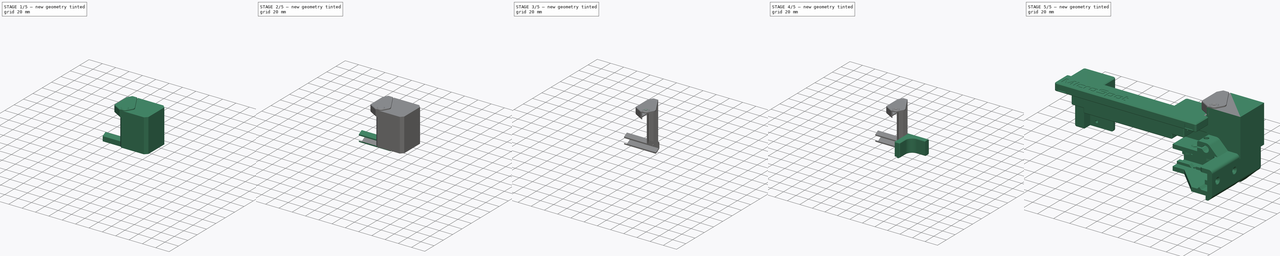
[diagram: build sequence overview — one tinted view per stage of 5, left to right]
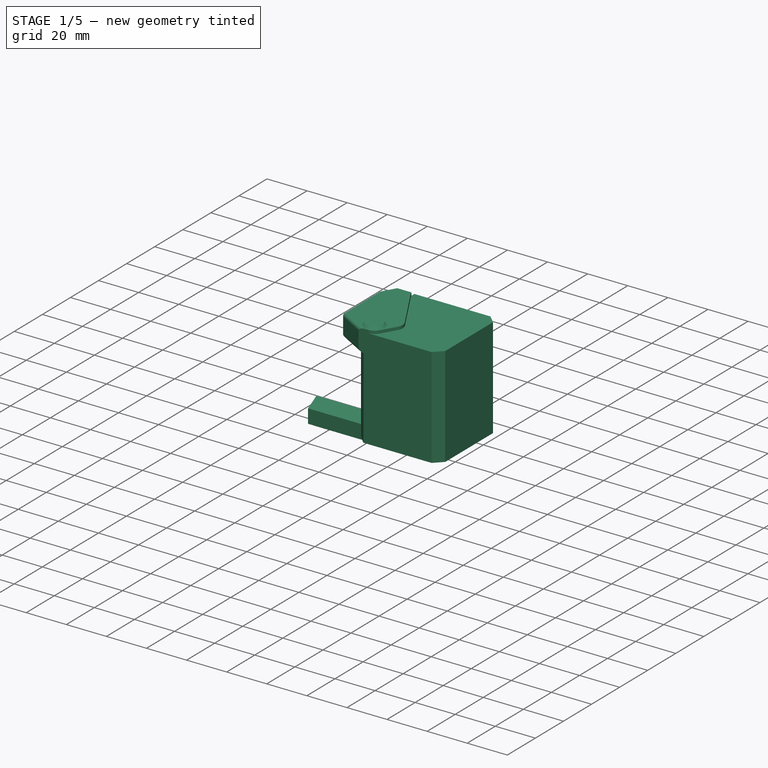
[diagram: stage 1 of 5 — iso view after this stage's code; geometry added in this stage tinted green]
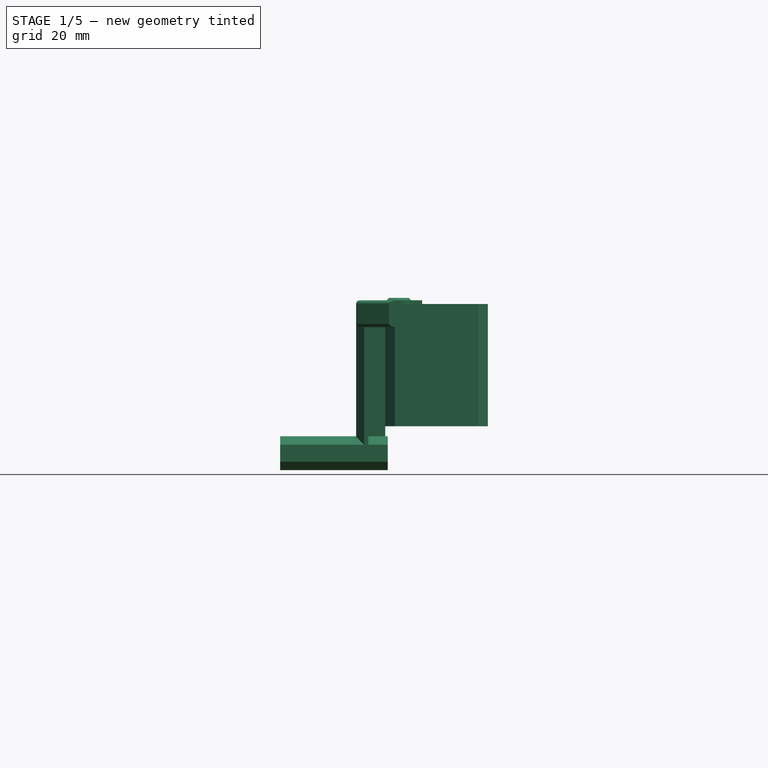
[diagram: stage 1 of 5 — front view after this stage's code; geometry added in this stage tinted green]
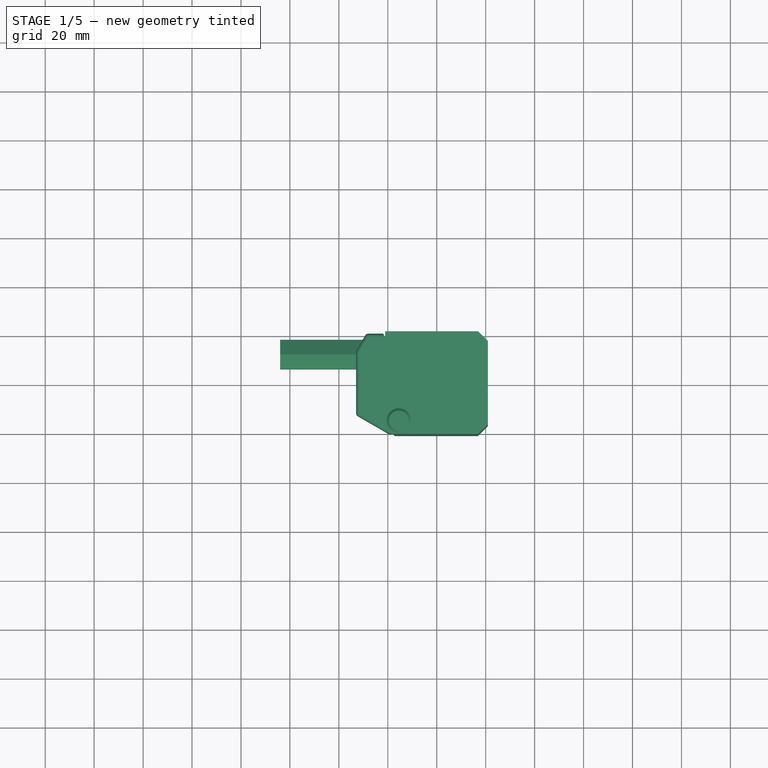
[diagram: stage 1 of 5 — top view after this stage's code; geometry added in this stage tinted green]
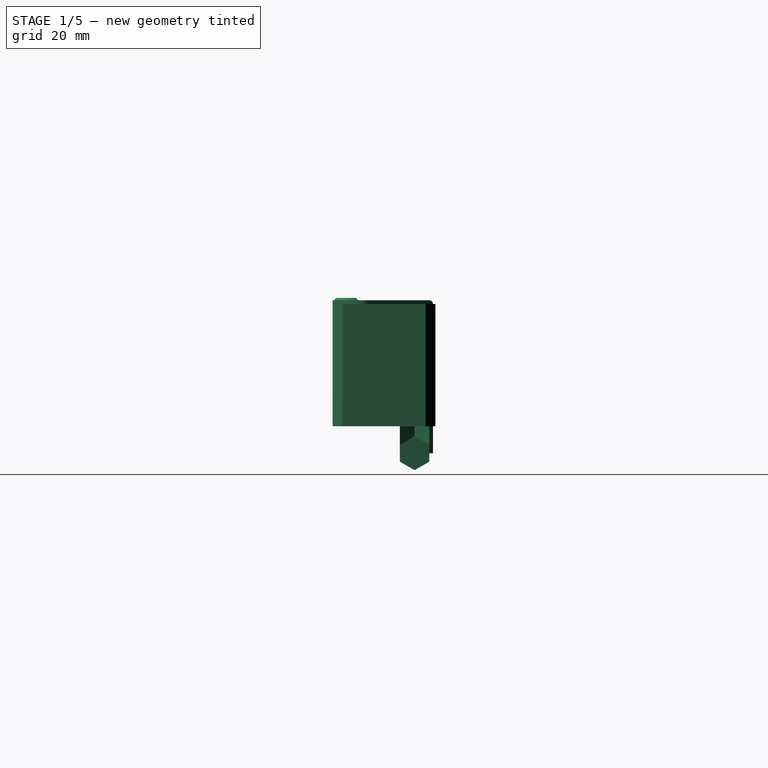
[diagram: stage 1 of 5 — right view after this stage's code; geometry added in this stage tinted green]
FCSTD DOCUMENT  (FreeCAD 0.16RUnknown)
Label: PulleyCover
License: All rights reserved
LicenseURL: http://en.wikipedia.org/wiki/All_rights_reserved
objects: Part::FeaturePython×17, Part::Cut×7, Sketcher::SketchObject×5, Part::MultiFuse×5, PartDesign::Pad×4, App::DocumentObjectGroup×4, Part::Box×3, Part::Thickness×3, Part::Fillet×2, Part::Cylinder×2, Part::Chamfer×2, PartDesign::Revolution×2, Spreadsheet::Sheet×1, Part::Part2DObjectPython×1, PartDesign::Draft×1
note: 60 computed .brp shape members not serialized (recipe doc carries the construction recipe); baked Part::Feature solids carry a one-line shape summary decoded from their .brp

FEATURE [App::DocumentObjectGroup] Group  label="Reference"
  Group = -> [BackCorner_01,NEMAPulley_01,UpperBackCover_01,Box001]
FEATURE [Sketcher::SketchObject] Sketch004  label="HexaChannel"
  Placement = pos=(-20,12.5,-14) rot=(-0.57735,-0.57735,0.57735;2.0944rad)
  expr: Placement.Base.y = 14 - pars.CWWidth
  sketch-geometry (7):
    g0: LineSegment StartX=6 StartY=-3.4641 StartZ=0 EndX=6 EndY=3.4641 EndZ=0
    g1: LineSegment StartX=6 StartY=3.4641 StartZ=0 EndX=0 EndY=6.9282 EndZ=0
    g2: LineSegment StartX=0 StartY=6.9282 StartZ=0 EndX=-6 EndY=3.4641 EndZ=0
    g3: LineSegment StartX=-6 StartY=3.4641 StartZ=0 EndX=-6 EndY=-3.4641 EndZ=0
    g4: LineSegment StartX=-6 StartY=-3.4641 StartZ=0 EndX=0 EndY=-6.9282 EndZ=0
    g5: LineSegment StartX=0 StartY=-6.9282 StartZ=0 EndX=6 EndY=-3.4641 EndZ=0
    g6: Circle [constr] CenterX=0 CenterY=0 CenterZ=0 NormalX=0 NormalY=0 NormalZ=1 Radius=6.9282
  constraints (16):
    c: Coincident(g0,g1)
    c: Coincident(g1,g2)
    c: Coincident(g2,g3)
    c: Coincident(g3,g4)
    c: Coincident(g4,g5)
    c: Coincident(g5,g0)
    c: Equal(g0, g1-g5) x5
    c: PointOnObject(g0,g6)
    c: PointOnObject(g1,g6)
    c: PointOnObject(g2,g6)
    c: PointOnObject(g3,g6)
    c: PointOnObject(g4,g6)
    c: PointOnObject(g5,g6)
    c: Coincident(g6,g-1)
    c: Vertical(g0)
    c: DistanceX(g2,g0) = 12
FEATURE [PartDesign::Pad] Pad004  label="HexaChannel001"
  Length = 44
  Length2 = 100
  Placement = pos=(-20,12.5,-14) rot=(-0.57735,-0.57735,0.57735;2.0944rad)
  Sketch = -> Sketch004
  Type = 0
FEATURE [Part::Part2DObjectPython] Clone2D001  label="HexaChannel002"  # Draft 2D object (typed FeaturePython)
  Objects = -> [Sketch004]
  Placement = pos=(-24.5,12.5,-14) rot=(0,0,1;1.5708rad)
  Scale = (1,1,1)
  expr: Placement.Base.y = 14 - pars.CWWidth
FEATURE [PartDesign::Pad] Pad005  label="VerticalHexa"
  Length = 61
  Length2 = 100
  Placement = pos=(-24.5,12.5,-14) rot=(0,0,1;1.5708rad)
  Sketch = -> Clone2D001
  Type = 0
FEATURE [Sketcher::SketchObject] Sketch006  label="CableEnd001"
  Placement = pos=(0,0,47) rot=(0,0,1;0rad)
  expr: Constraints[8] = 20 - pars.CWWidth
  expr: Constraints[14] = HexaChannel002.Placement.Base.x
  sketch-geometry (10):
    g0: LineSegment StartX=-27.9641 StartY=18.5 StartZ=0 EndX=-31.4282 EndY=12.5 EndZ=0
    g1: LineSegment StartX=-31.4282 StartY=12.5 StartZ=0 EndX=-31.4282 EndY=-12.4019 EndZ=0
    g2: LineSegment StartX=-31.4282 StartY=-12.4019 StartZ=0 EndX=-16.5359 EndY=-21 EndZ=0
    g3: LineSegment StartX=-6.63323 StartY=-6.44615 StartZ=0 EndX=-21.0359 EndY=18.5 EndZ=0
    g4: LineSegment StartX=-21.0359 StartY=18.5 StartZ=0 EndX=-27.9641 EndY=18.5 EndZ=0
    g5: ArcOfCircle [constr] CenterX=-24.5 CenterY=12.5 CenterZ=0 NormalX=0 NormalY=0 NormalZ=1 Radius=6.9282 StartAngle=1.0472 EndAngle=3.14159
    g6: LineSegment StartX=-16.5359 StartY=-21 StartZ=0 EndX=-15.0359 EndY=-21 EndZ=0
    g7: LineSegment StartX=-6.63323 StartY=-11.4462 StartZ=0 EndX=-10.7058 EndY=-18.5 EndZ=0
    g8: ArcOfCircle CenterX=-15.0359 CenterY=-16 CenterZ=0 NormalX=0 NormalY=0 NormalZ=1 Radius=5 StartAngle=4.71239 EndAngle=5.75959
    g9: ArcOfCircle CenterX=-10.9634 CenterY=-8.94615 CenterZ=0 NormalX=0 NormalY=0 NormalZ=1 Radius=5 StartAngle=5.75959 EndAngle=6.80678
  constraints (28):
    c: Coincident(g0,g1)
    c: Coincident(g1,g2)
    c: Coincident(g3,g4)
    c: Coincident(g0,g4)
    c: Horizontal(g4)
    c: Vertical(g1)
    c: Equal(g4,g0)
    c: DistanceY(g2) = -21
    c: DistanceY(g3) = 18.5
    c: Coincident(g3,g5)
    c: Coincident(g0,g5)
    c: PointOnObject(g0,g5)
    c: Angle(g0,g4) = 2.0944
    c: DistanceY(g0,g0) = 6
    c: DistanceX(g5) = -24.5
    c: Angle(g2,g1) = 2.0944
    c: Coincident(g2,g6)
    c: Horizontal(g6)
    c: Parallel(g7,g0)
    c: Angle(g3,g7) = 2.0944
    c: Tangent(g6,g8) = -1.5708
    c: Tangent(g7,g8) = 1.5708
    c: Tangent(g7,g9) = 1.5708
    c: Tangent(g3,g9) = -1.5708
    c: Radius(g9) = 5
    c: Equal(g9,g8)
    c: DistanceX(g3,g6) = 6
    c: DistanceX(g6,g6) = 1.5
FEATURE [PartDesign::Pad] Pad006  label="CableEnd002"
  Length = 8
  Length2 = 100
  Placement = pos=(0,0,47) rot=(0,0,1;0rad)
  Reversed = true
  Sketch = -> Sketch006
  Type = 0
FEATURE [Part::Thickness] Thickness001  label="VerticalCable"
  Faces = -> Pad005 [Face4,Face5,Face7,Face6]
  Intersection = false
  Join = 0
  Mode = 0
  SelfIntersection = false
  Value = 1.5
  expr: Value = pars.CWWidth
FEATURE [Part::FeaturePython] Clone008  label="Clone of HexaChannel002"  # Draft clone (typed FeaturePython)
  Objects = -> [Pad004]
  Placement = pos=(-20,12.5,-14) rot=(0.57735,0.57735,-0.57735;4.18879rad)
  Scale = (1,1,1)
  expr: Placement.Base.y = 14 - pars.CWWidth
FEATURE [Part::Box] Box002  label="NEMA001"
  Height = 50
  Length = 42
  Placement = pos=(-21.1,-21,-3) rot=(0,0,1;0rad)
  Width = 42
FEATURE [Sketcher::SketchObject] Sketch008  label="BoltPad"
  Placement = pos=(0,0,0) rot=(1,0,0;1.5708rad)
  sketch-geometry (4):
    g0: LineSegment StartX=0 StartY=1 StartZ=0 EndX=0 EndY=0 EndZ=0
    g1: LineSegment StartX=0 StartY=0 StartZ=0 EndX=5 EndY=0 EndZ=0
    g2: LineSegment StartX=5 StartY=0 StartZ=0 EndX=4 EndY=1 EndZ=0
    g3: LineSegment StartX=4 StartY=1 StartZ=0 EndX=0 EndY=1 EndZ=0
  constraints (11):
    c: Coincident(g0,g1)
    c: Coincident(g1,g2)
    c: Coincident(g2,g3)
    c: Coincident(g0,g3)
    c: Horizontal(g3)
    c: Horizontal(g1)
    c: Vertical(g0)
    c: Angle(g2,g1) = 0.785398
    c: Coincident(g0,g-1)
    c: DistanceY(g0,g0) = 1
    c: DistanceX(g3,g3) = 4
FEATURE [PartDesign::Revolution] Revolution001  label="BoltPad001"
  Angle = 360
  Axis = (0,0,1)
  Base = (0,0,0)
  Placement = pos=(0,0,0) rot=(1,0,0;1.5708rad)
  ReferenceAxis = -> Sketch008 [V_Axis]
  Reversed = true
  Sketch = -> Sketch008
FEATURE [App::DocumentObjectGroup] Group002  label="Component_src"
  Group = -> [Cylinder,Revolution,Revolution001]
FEATURE [Part::FeaturePython] Clone017  label="Clone of BoltPad001"  # Draft clone (typed FeaturePython)
  Objects = -> [Revolution001]
  Placement = pos=(-15.5,-15.5,48.5) rot=(1,0,0;1.5708rad)
  Scale = (1,1,1)
FEATURE [Part::Chamfer] Chamfer001  label="NEMAChamfer"
  Base = -> Box002
  Edges = 3 edges r=4: [Edge1,Edge5,Edge7]
FEATURE [Part::Thickness] Thickness005  label="CableEnd"
  Faces = -> Pad006 [Face7,Face8,Face9,Face1,Face2]
  Intersection = false
  Join = 0
  Mode = 0
  SelfIntersection = false
  Value = 1.5
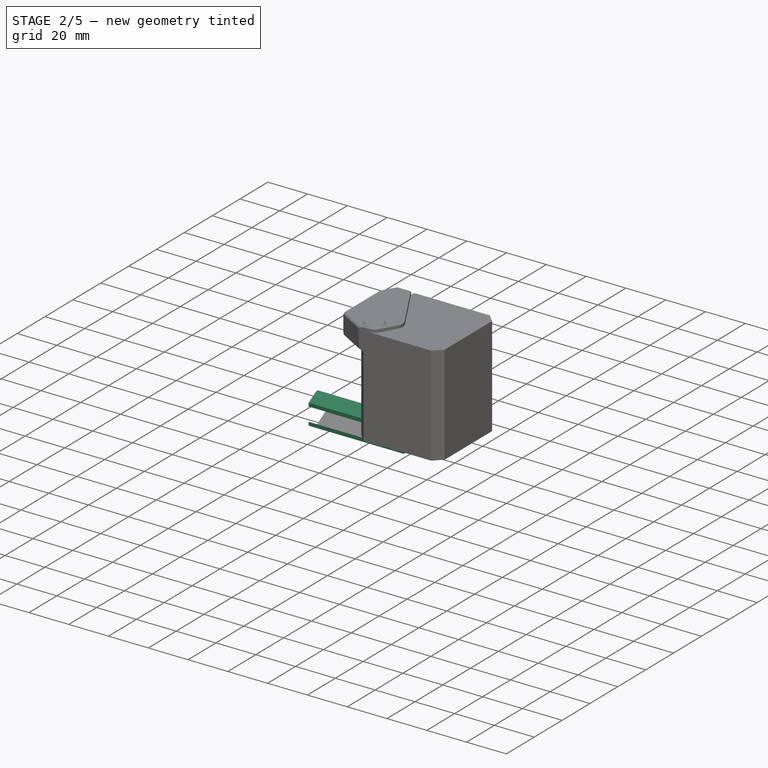
[diagram: stage 2 of 5 — iso view after this stage's code; geometry added in this stage tinted green]
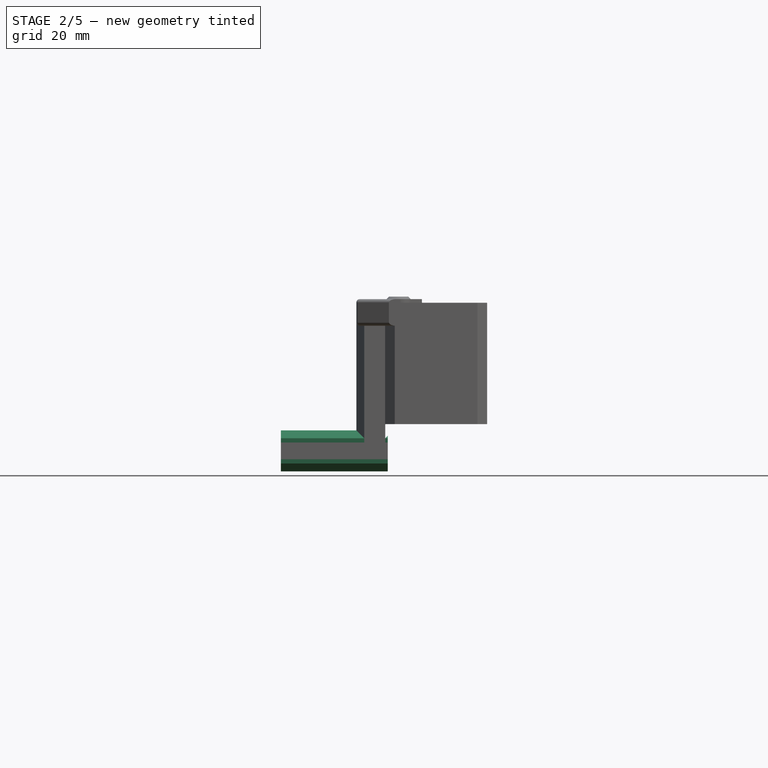
[diagram: stage 2 of 5 — front view after this stage's code; geometry added in this stage tinted green]
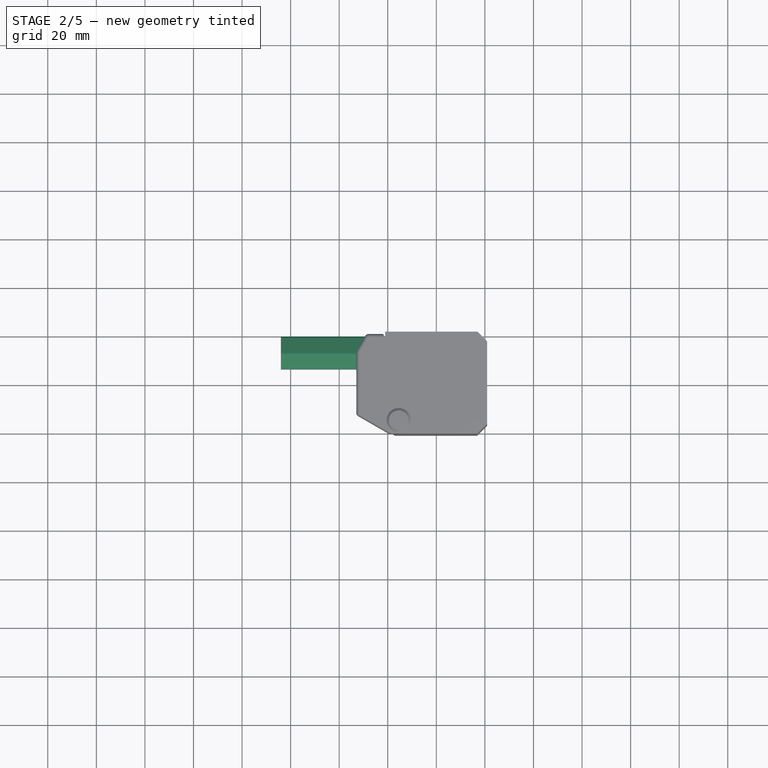
[diagram: stage 2 of 5 — top view after this stage's code; geometry added in this stage tinted green]
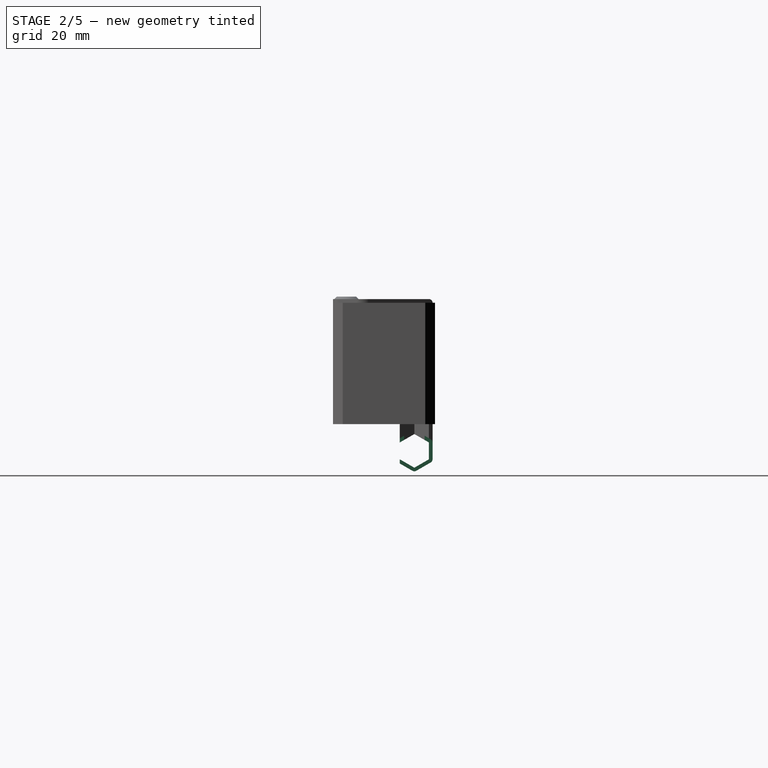
[diagram: stage 2 of 5 — right view after this stage's code; geometry added in this stage tinted green]
FEATURE [Part::Thickness] Thickness  label="LowerCable"
  Faces = -> Pad004 [Face4,Face7,Face8]
  Intersection = false
  Join = 0
  Mode = 0
  SelfIntersection = false
  Value = 1.5
  expr: Value = pars.CWWidth
FEATURE [Part::FeaturePython] Clone009  label="Clone of VerticalHexa"  # Draft clone (typed FeaturePython)
  Objects = -> [Pad005]
  Placement = pos=(-24.5,12.5,-14) rot=(0,0,1;1.5708rad)
  Scale = (1,1,1)
  expr: Placement.Base.y = 14 - pars.CWWidth
  expr: Placement.Base.x = HexaChannel002.Placement.Base.x
FEATURE [Part::FeaturePython] Clone010  label="Clone of VerticalHexa001"  # Draft clone (typed FeaturePython)
  Objects = -> [Pad005]
  Placement = pos=(-24.5,12.5,-14) rot=(0,0,1;1.5708rad)
  Scale = (1,1,1)
  expr: Placement.Base.y = 14 - pars.CWWidth
  expr: Placement.Base.x = HexaChannel002.Placement.Base.x
FEATURE [Part::FeaturePython] Clone011  label="Clone of CableEnd002"  # Draft clone (typed FeaturePython)
  Objects = -> [Pad006]
  Placement = pos=(0,0,47) rot=(0,0,1;0rad)
  Scale = (1,1,1)
FEATURE [Part::Cut] Cut003
  Base = -> Thickness
  Tool = -> Clone009
FEATURE [Part::Cut] Cut004
  Base = -> Thickness001
  Tool = -> Clone008
FEATURE [Part::Cut] Cut006
  Base = -> Cut004
  Tool = -> Clone011
FEATURE [Part::Cut] Cut005
  Base = -> Thickness005
  Tool = -> Clone010
FEATURE [Part::MultiFuse] Fusion001  label="CableFusion"
  Shapes = -> [Cut003,Cut006,Cut005]
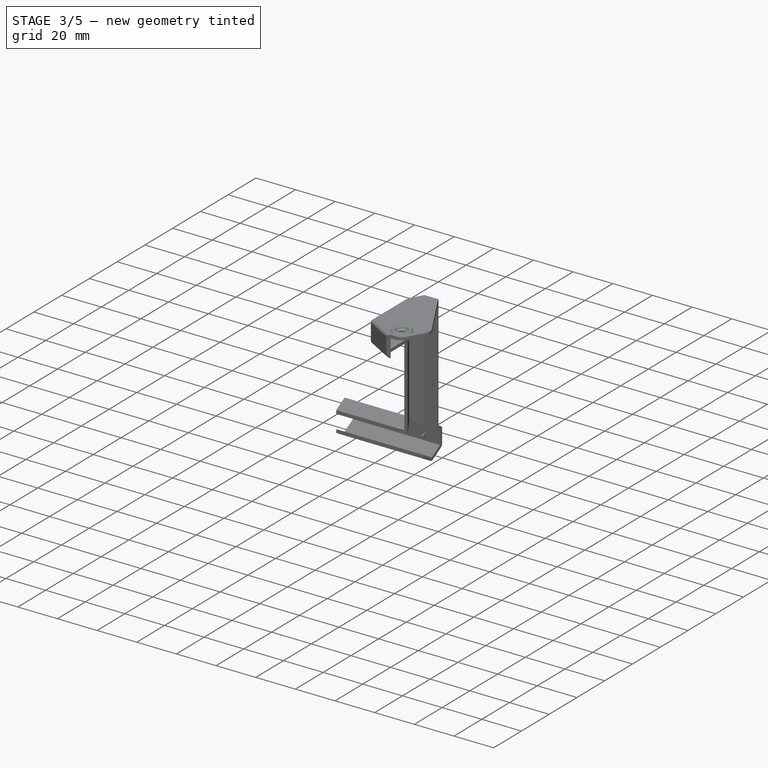
[diagram: stage 3 of 5 — iso view after this stage's code; geometry added in this stage tinted green]
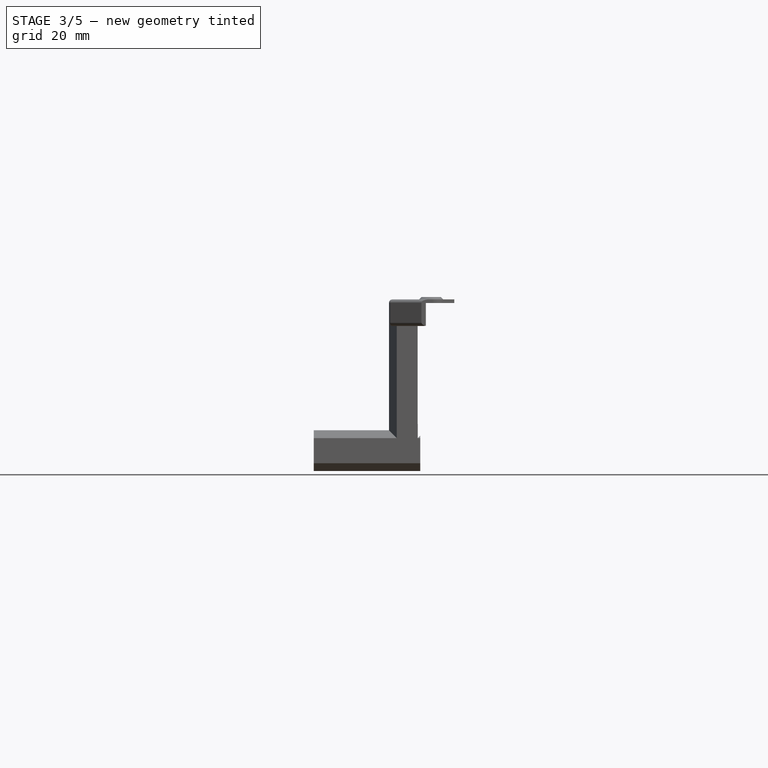
[diagram: stage 3 of 5 — front view after this stage's code; geometry added in this stage tinted green]
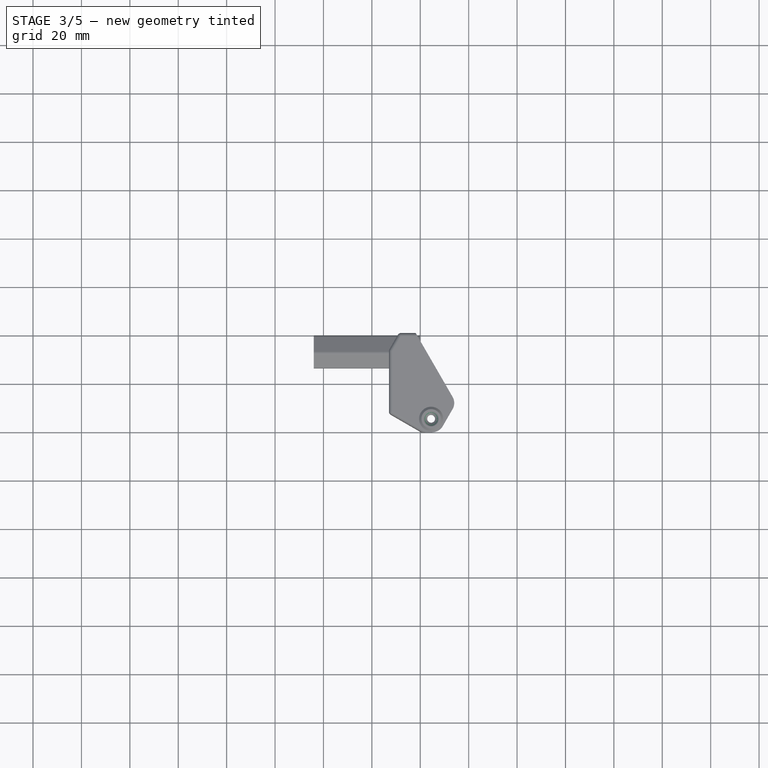
[diagram: stage 3 of 5 — top view after this stage's code; geometry added in this stage tinted green]
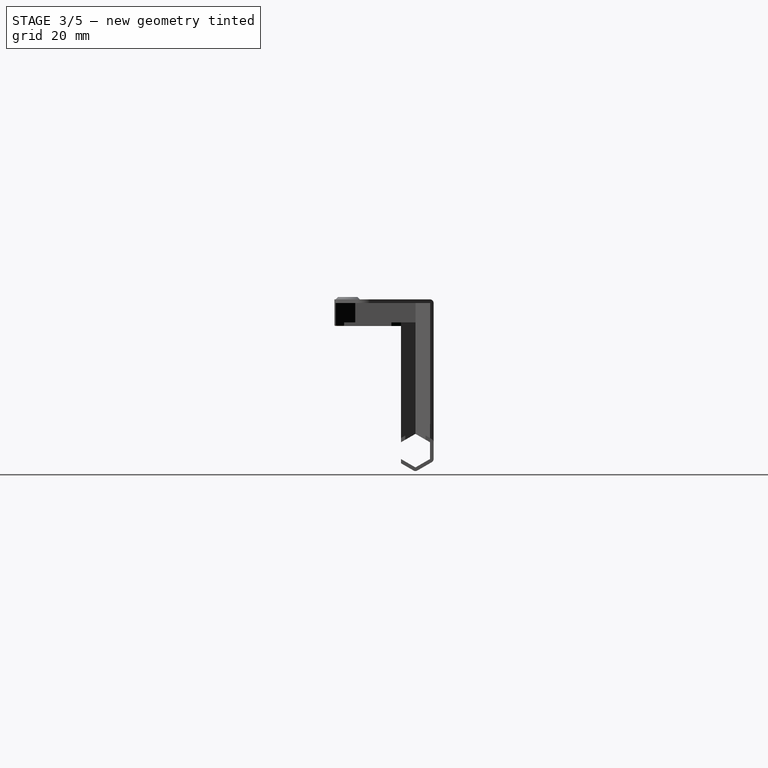
[diagram: stage 3 of 5 — right view after this stage's code; geometry added in this stage tinted green]
FEATURE [Sketcher::SketchObject] Sketch007  label="DIN7991Bolt"
  Placement = pos=(0,0,0) rot=(1,0,0;1.5708rad)
  expr: Constraints[13] = 3 + pars.CilLoose
  expr: Constraints[11] = 1.5 + pars.CilLoose
  sketch-geometry (5):
    g0: LineSegment StartX=0 StartY=0 StartZ=0 EndX=3.1 EndY=0 EndZ=0
    g1: LineSegment StartX=3.1 StartY=0 StartZ=0 EndX=1.6 EndY=-1.5 EndZ=0
    g2: LineSegment StartX=1.6 StartY=-1.5 StartZ=0 EndX=1.6 EndY=-45 EndZ=0
    g3: LineSegment StartX=1.6 StartY=-45 StartZ=0 EndX=0 EndY=-45 EndZ=0
    g4: LineSegment StartX=0 StartY=-45 StartZ=0 EndX=0 EndY=0 EndZ=0
  constraints (14):
    c: Coincident(g0,g1)
    c: Coincident(g1,g2)
    c: Coincident(g2,g3)
    c: Coincident(g3,g4)
    c: Coincident(g0,g4)
    c: Coincident(g0,g-1)
    c: Angle(g0,g1) = 0.785398
    c: Horizontal(g0)
    c: Horizontal(g3)
    c: Vertical(g4)
    c: Vertical(g2)
    c: DistanceX(g3,g3) = 1.6
    c: DistanceY(g4,g4) = 45
    c: DistanceX(g0,g0) = 3.1
FEATURE [PartDesign::Revolution] Revolution  label="DIN7991Bolt001"
  Angle = 360
  Axis = (0,0,1)
  Base = (0,0,0)
  Placement = pos=(0,0,0) rot=(1,0,0;1.5708rad)
  ReferenceAxis = -> Sketch007 [V_Axis]
  Reversed = true
  Sketch = -> Sketch007
FEATURE [Part::FeaturePython] Clone016  label="Clone of DIN7991Bolt001"  # Draft clone (typed FeaturePython)
  Objects = -> [Revolution]
  Placement = pos=(-15.5,-15.5,49.5) rot=(1,0,0;1.5708rad)
  Scale = (1,1,1)
FEATURE [Part::FeaturePython] refine002  label="refine_CableFusion"  # WARN: FeaturePython — macro-defined, semantics opaque (R4)
  Base = -> Fusion001
FEATURE [Part::Cut] Cut007  label="NEMACut"
  Base = -> refine002
  Tool = -> Chamfer001
FEATURE [Part::FeaturePython] refine005  label="refine_NEMACut"  # WARN: FeaturePython — macro-defined, semantics opaque (R4)
  Base = -> Cut007
FEATURE [Part::MultiFuse] Fusion005  label="BoltPadAdd"
  Shapes = -> [refine005,Clone017]
FEATURE [Part::Fillet] Fillet001  label="AntiCreaseFillet"
  Base = -> Fusion005
  Edges = 2 edges r=0.4: [Edge29,Edge71]
FEATURE [Part::Cut] Cut008  label="UpperBoltCut"
  Base = -> Fillet001
  Tool = -> Clone016
FEATURE [PartDesign::Draft] Draft  label="PrintableCable"
  Angle = 60
  Base = -> Cut008 [Face33]
  NeutralPlane = -> Cut008 [Face37]
FEATURE [App::DocumentObjectGroup] Group003  label="Cable_src"
  Group = -> [Fusion001,Cut007,Cut008,Draft]
FEATURE [Part::FeaturePython] Clone019  label="Cable"  # Draft clone (typed FeaturePython)
  Objects = -> [Draft]
  Scale = (1,1,1)
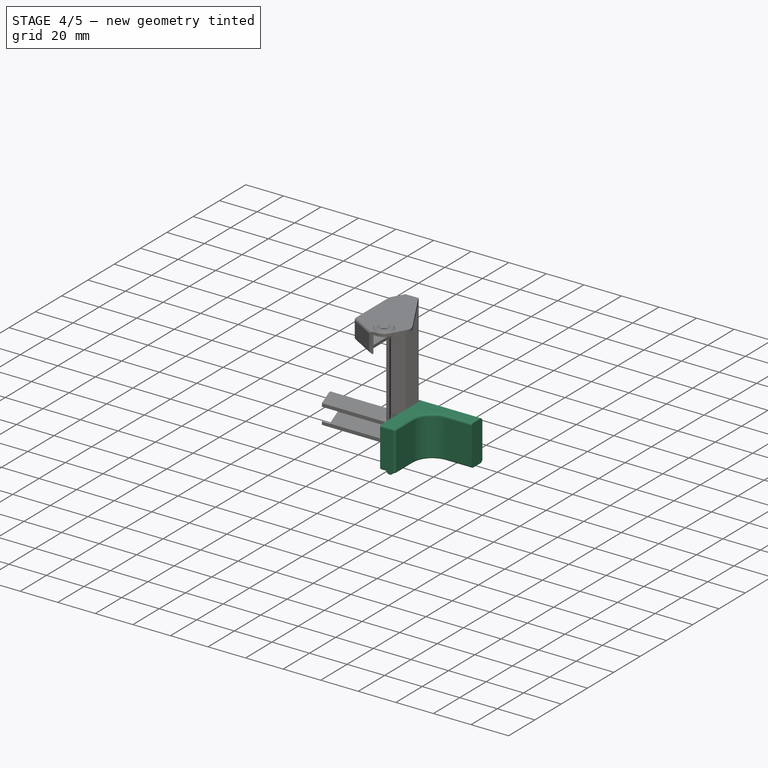
[diagram: stage 4 of 5 — iso view after this stage's code; geometry added in this stage tinted green]
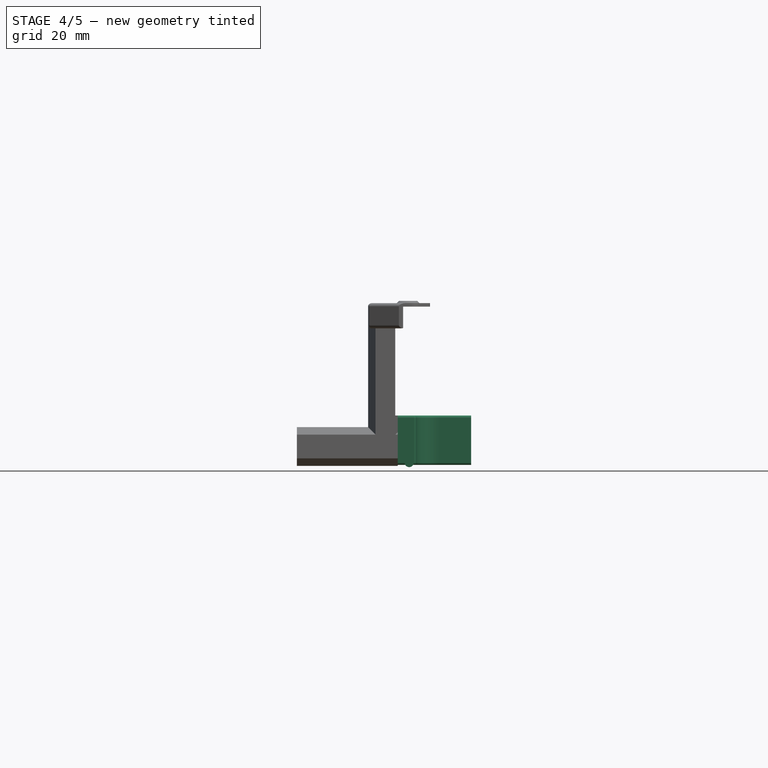
[diagram: stage 4 of 5 — front view after this stage's code; geometry added in this stage tinted green]
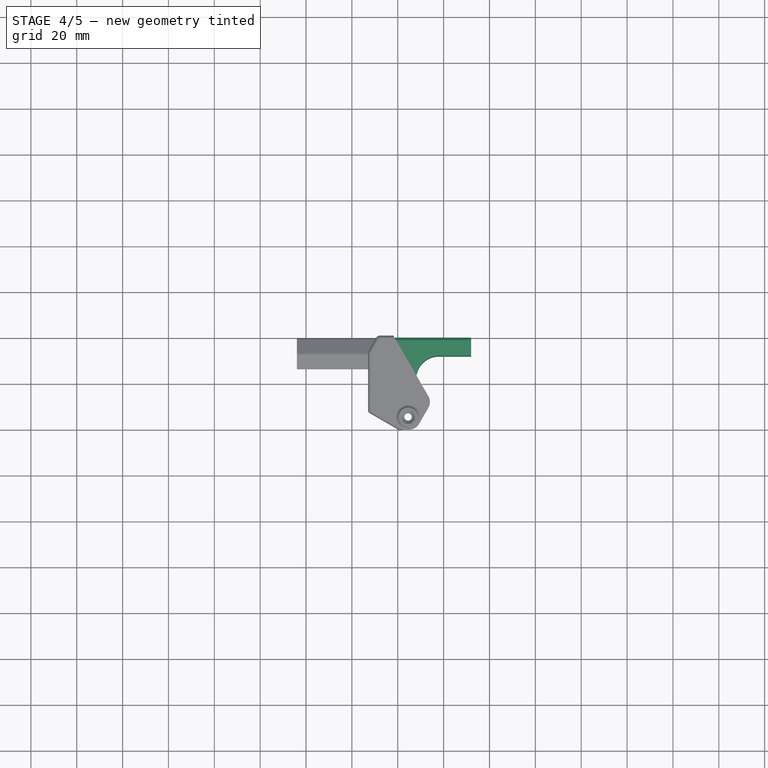
[diagram: stage 4 of 5 — top view after this stage's code; geometry added in this stage tinted green]
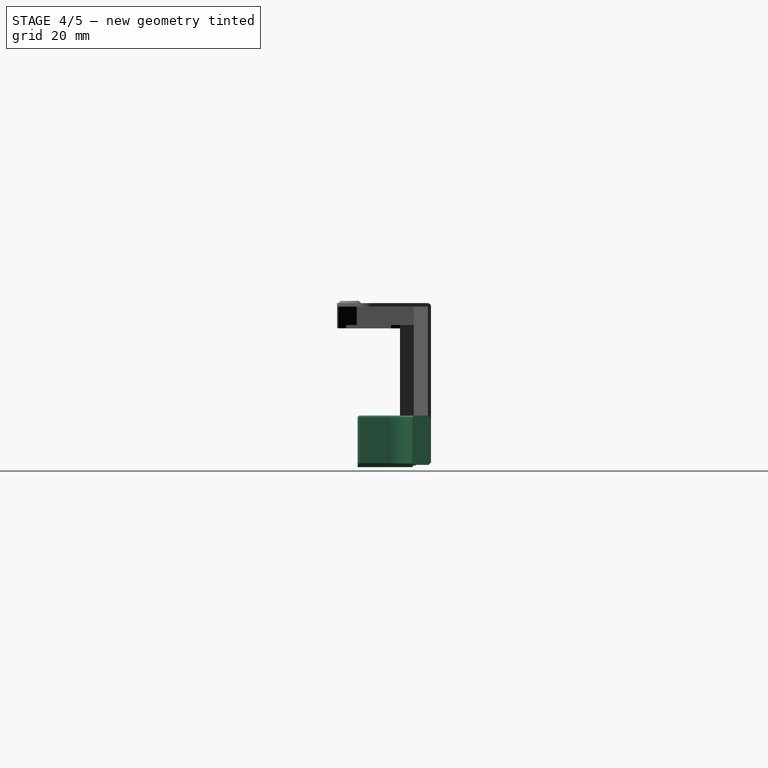
[diagram: stage 4 of 5 — right view after this stage's code; geometry added in this stage tinted green]
FEATURE [Sketcher::SketchObject] Sketch  label="Base"
  Placement = pos=(0,0,-0.5) rot=(0,0,1;0rad)
  expr: Placement.Base.z = -pars.Clear
  sketch-geometry (7):
    g0: LineSegment StartX=12 StartY=20 StartZ=0 EndX=-20 EndY=20 EndZ=0
    g1: LineSegment StartX=-20 StartY=20 StartZ=0 EndX=-20 EndY=-12 EndZ=0
    g2: LineSegment StartX=-20 StartY=-12 StartZ=0 EndX=-12 EndY=-12 EndZ=0
    g3: LineSegment StartX=-12 StartY=-12 StartZ=0 EndX=-12 EndY=2 EndZ=0
    g4: LineSegment StartX=-2 StartY=12 StartZ=0 EndX=12 EndY=12 EndZ=0
    g5: LineSegment StartX=12 StartY=12 StartZ=0 EndX=12 EndY=20 EndZ=0
    g6: ArcOfCircle CenterX=-2 CenterY=2 CenterZ=0 NormalX=0 NormalY=0 NormalZ=1 Radius=10 StartAngle=1.5708 EndAngle=3.14159
  constraints (20):
    c: Coincident(g1,g2)
    c: Coincident(g2,g3)
    c: Coincident(g4,g5)
    c: Coincident(g5,g0)
    c: Horizontal(g4)
    c: Horizontal(g0)
    c: Horizontal(g2)
    c: Vertical(g1)
    c: Vertical(g3)
    c: Vertical(g5)
    c: DistanceX(g4) = 12
    c: DistanceY(g0) = 20
    c: DistanceX(g2) = -12
    c: DistanceY(g2) = -12
    c: DistanceX(g1) = -20
    c: DistanceY(g5,g5) = 8
    c: Tangent(g3,g6) = 1.5708
    c: Tangent(g4,g6) = 1.5708
    c: Radius(g6) = 10
    c: Coincident(g0,g1)
FEATURE [PartDesign::Pad] Pad  label="Base001"
  Length = 21.5
  Length2 = 100
  Placement = pos=(0,0,-0.5) rot=(0,0,1;0rad)
  Reversed = true
  Sketch = -> Sketch
  Type = 0
  expr: Length = 22 - pars.Clear
FEATURE [Part::Fillet] Fillet  label="NiceFillet"
  Base = -> Pad
  Edges = 5 edges r=1: [Edge3,Edge4,Edge14,Edge15,Edge16]
FEATURE [Part::Cylinder] Cylinder001  label="AntiSpin"
  Angle = 360
  Height = 24
  Placement = pos=(-15,12,-21) rot=(1,0,0;1.5708rad)
  Radius = 2
FEATURE [Part::Box] Box  label="SlitPatch"
  Height = 16
  Length = 5
  Placement = pos=(-19,20,-16.5) rot=(0,0,1;3.14159rad)
  Width = 1.5
  expr: Placement.Base.z = -16 - pars.Clear
  expr: Width = pars.CWWidth
FEATURE [Part::MultiFuse] Fusion004  label="SlitAdd"
  Shapes = -> [Fillet,Box]
FEATURE [Part::FeaturePython] refine004  label="refine_SlitAdd"  # WARN: FeaturePython — macro-defined, semantics opaque (R4)
  Base = -> Fusion004
FEATURE [Part::Chamfer] Chamfer  label="NiceChamfer"
  Base = -> refine004
  Edges = 2 edges r=1: [Edge23,Edge55]
FEATURE [Part::MultiFuse] Fusion
  Shapes = -> [Cylinder001,Chamfer]
FEATURE [Part::FeaturePython] refine  label="AntiSpin001"  # WARN: FeaturePython — macro-defined, semantics opaque (R4)
  Base = -> Fusion
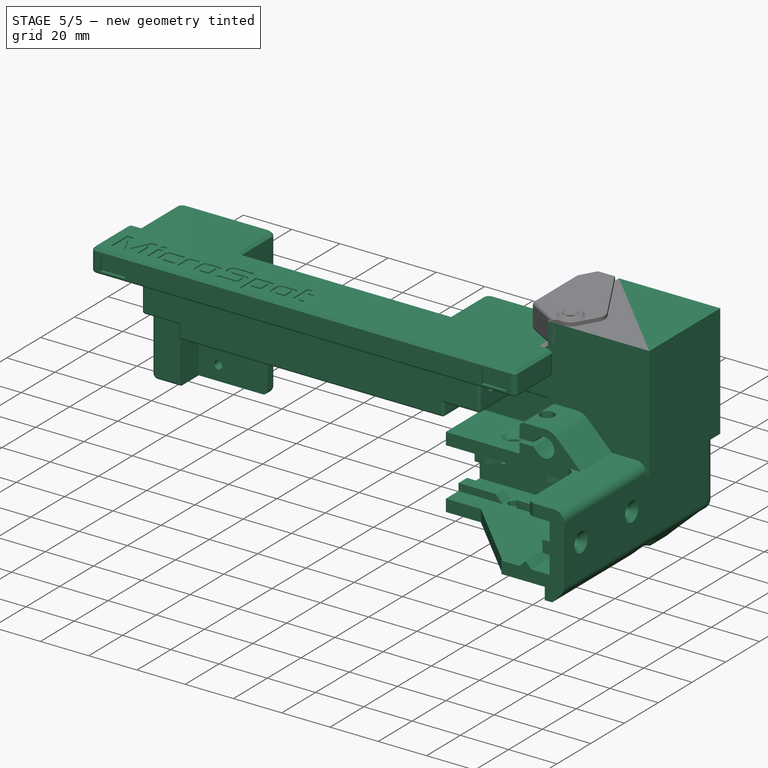
[diagram: stage 5 of 5 — iso view after this stage's code; geometry added in this stage tinted green]
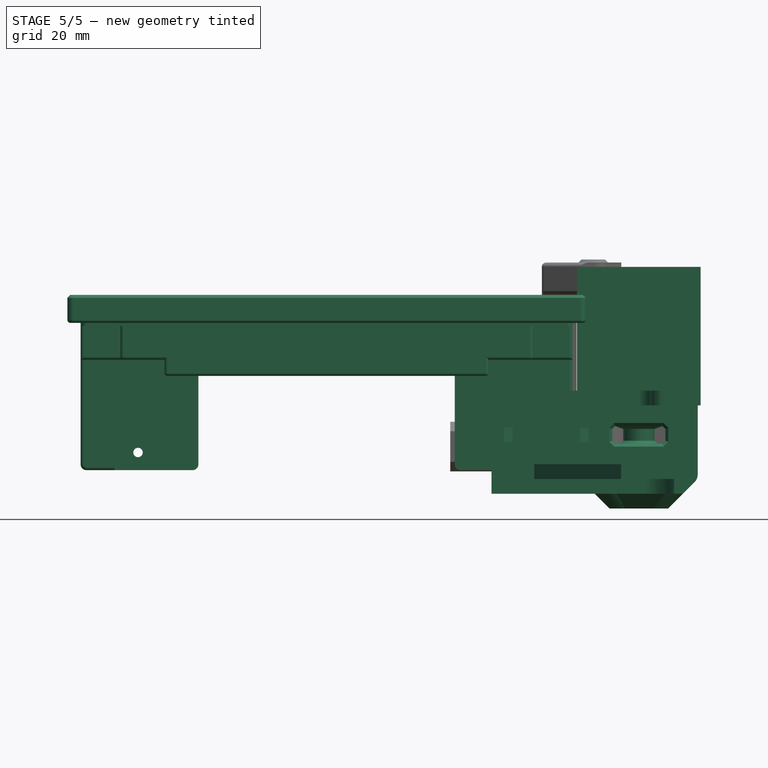
[diagram: stage 5 of 5 — front view after this stage's code; geometry added in this stage tinted green]
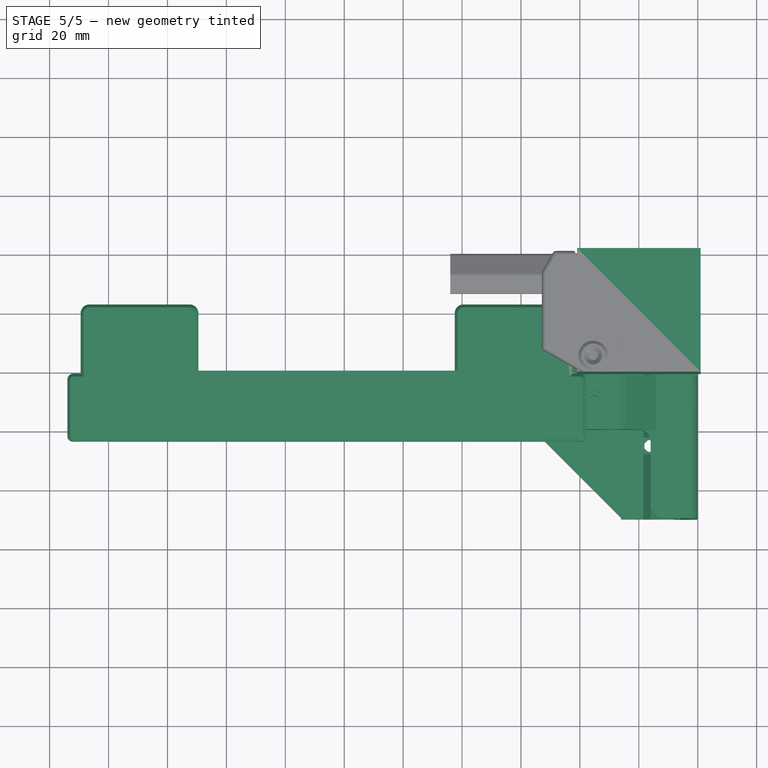
[diagram: stage 5 of 5 — top view after this stage's code; geometry added in this stage tinted green]
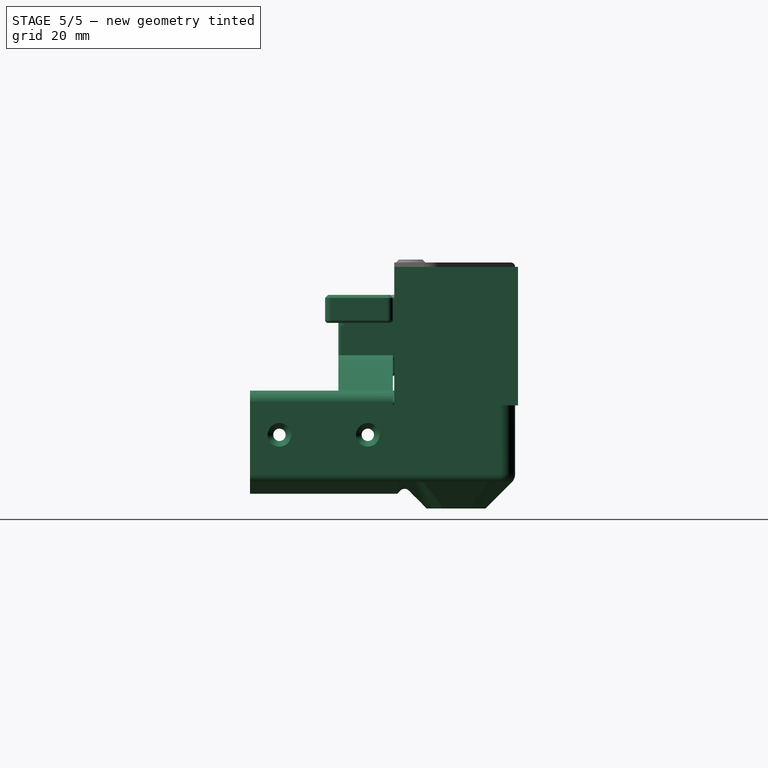
[diagram: stage 5 of 5 — right view after this stage's code; geometry added in this stage tinted green]
FEATURE [Spreadsheet::Sheet] Spreadsheet  label="pars"
  cells = A1=Bolts and Nuts; B1=Value; D1=Components; E1=Value; A2=Thread Tight Tolerance (Radius, ratio); B2(ThrTighRatio)=0.96; D2=Tight Cilinder Tolerances (Radius, mm); E2(CilTight)=0.1; A3=Thread Tight Tolerance (Radius, mm); B3(ThrTightmm)=0.1; D3=Loose Cilinder Tolerances (Radius, mm); E3(CilLoose)=0.1; A5=Nut Slot Width Clearance (mm); B5(NutWidthClearmm)=0.1; A6=Nut Slot Thickess Clearance (mm); B6(NutThickClearmm)=0.1; A13=Particular parameters; B13=Value; A14=NEMA Clearance; B14(Clear)=0.5; A15=Cable Wall Width; B15(CWWidth)=1.5
FEATURE [Part::FeaturePython] BackCorner_01  label="BackCorner"  # a2plus imported part (geometry in sourceFile) (typed FeaturePython)
  fixedPosition = true
  sourceFile = ./BackCorner.fcstd
  timeLastImport = 1.52292e+09
  updateColors = true
FEATURE [Part::FeaturePython] NEMAPulley_01  label="NEMAPulley"  # a2plus imported part (geometry in sourceFile) (typed FeaturePython)
  Placement = pos=(0,0,0) rot=(1,0,0;3.14159rad)
  fixedPosition = false
  sourceFile = ./NEMAPulley.fcstd
  timeLastImport = 1.53193e+09
  updateColors = true
FEATURE [Part::Cylinder] Cylinder  label="M3Thread"
  Angle = 360
  Height = 40
  Radius = 1.6
  expr: Radius = pars.CilLoose + 1.5
FEATURE [Part::FeaturePython] Clone  label="Clone of M3Thread"  # Draft clone (typed FeaturePython)
  Objects = -> [Cylinder]
  Placement = pos=(-15.5,15.5,0) rot=(0,1,0;3.14159rad)
  Scale = (1,1,1)
FEATURE [Part::FeaturePython] UpperBackCover_01  label="UpperBackCover"  # a2plus imported part (geometry in sourceFile) (typed FeaturePython)
  Placement = pos=(-106,-30,36) rot=(0,0,1;0rad)
  fixedPosition = false
  sourceFile = ./../Axes/ZCarriage/UpperBackCover.fcstd
  timeLastImport = 1.53246e+09
  updateColors = true
FEATURE [Part::Box] Box001  label="NEMA"
  Height = 47
  Length = 42
  Placement = pos=(-21,-21,0) rot=(0,0,1;0rad)
  Width = 42
FEATURE [Part::Cut] Cut  label="BoltCut"
  Base = -> refine
  Tool = -> Clone
FEATURE [Part::MultiFuse] Fusion007  label="CableAdd"
  Shapes = -> [Clone019,Cut]
FEATURE [Part::FeaturePython] refine003  label="refine_CableAdd"  # WARN: FeaturePython — macro-defined, semantics opaque (R4)
  Base = -> Fusion007
FEATURE [App::DocumentObjectGroup] Group001  label="src"
  Group = -> [Pad,Fusion,Fusion004,refine003]
FEATURE [Part::FeaturePython] Clone013  label="PulleyCover"  # Draft clone (typed FeaturePython)
  Objects = -> [refine003]
  Scale = (1,1,1)
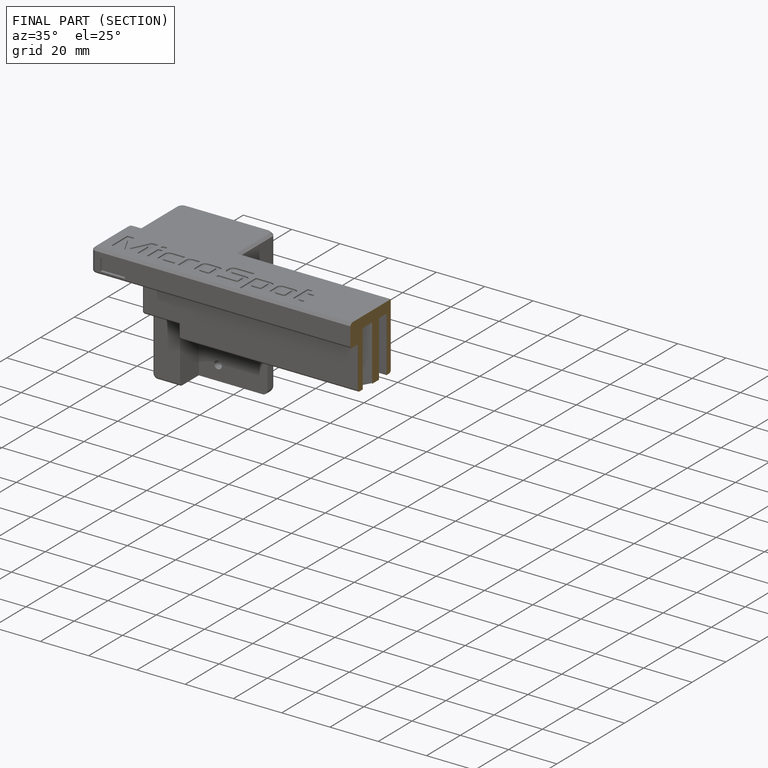
[diagram: finished part — half-section view (interior)]
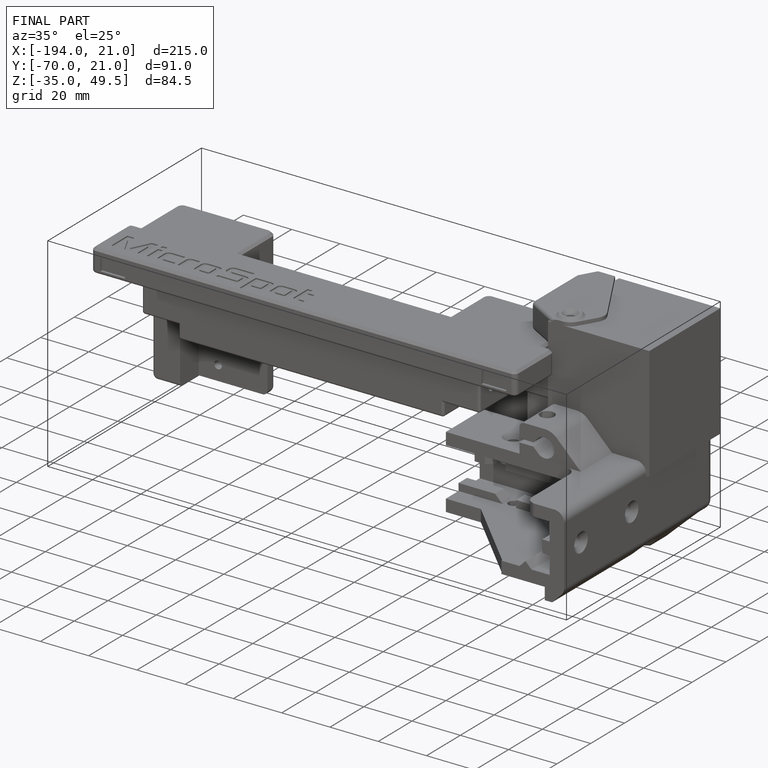
[diagram: finished part — iso view with bounding-box wireframe]
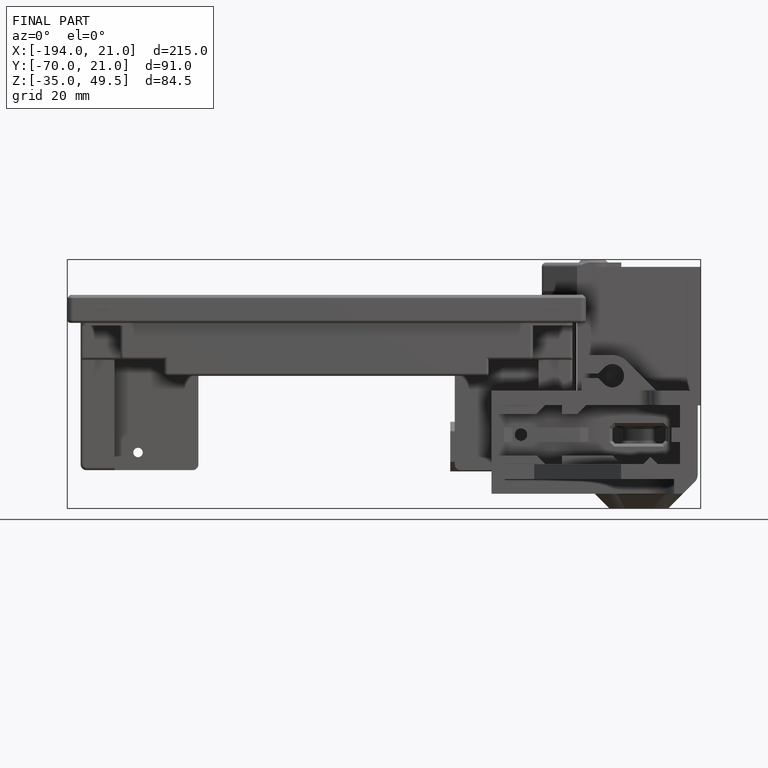
[diagram: finished part — front view with bounding-box wireframe]
